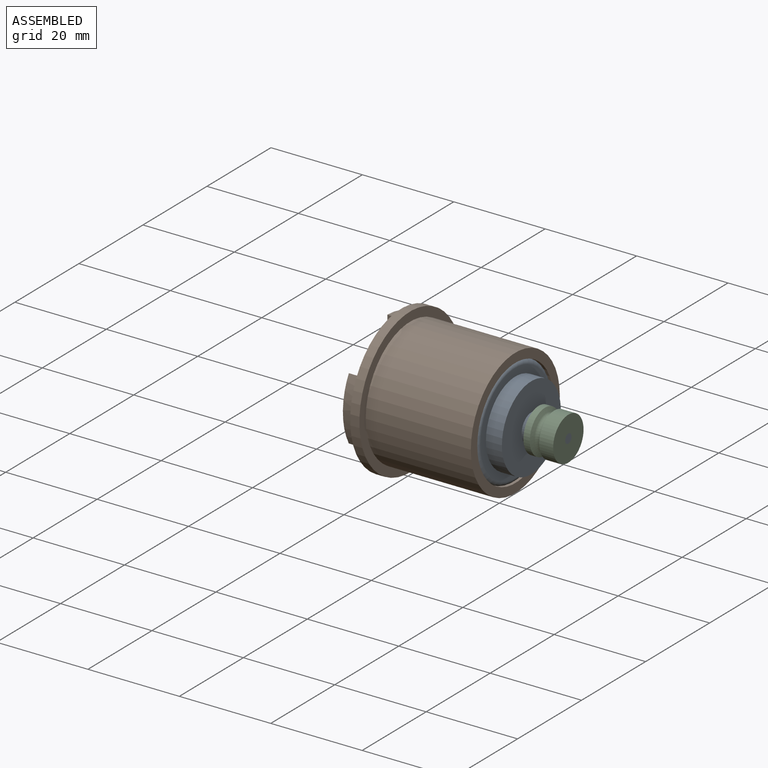
[diagram: assembled view]
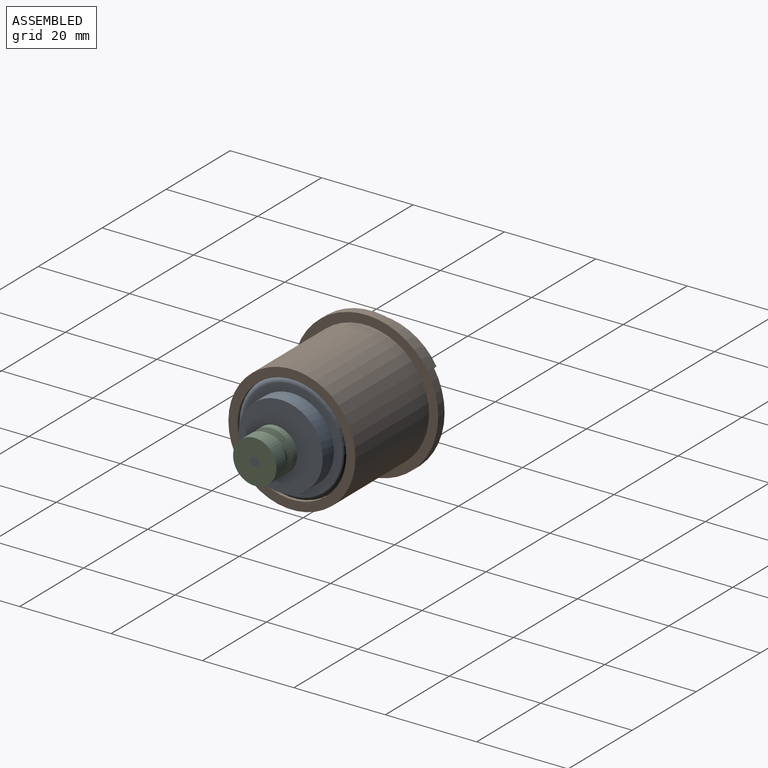
[diagram: assembled view, second angle]
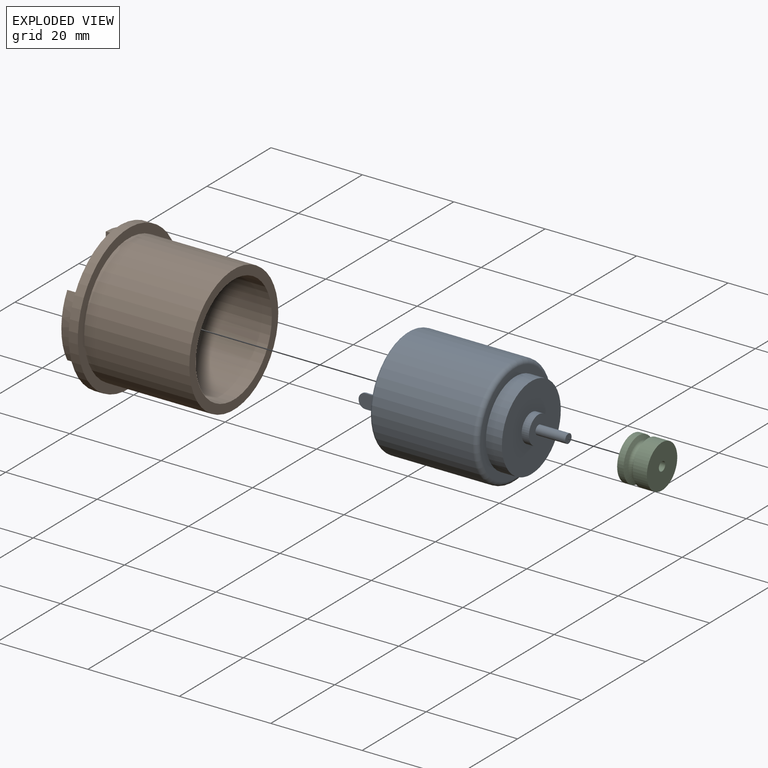
[diagram: exploded view]
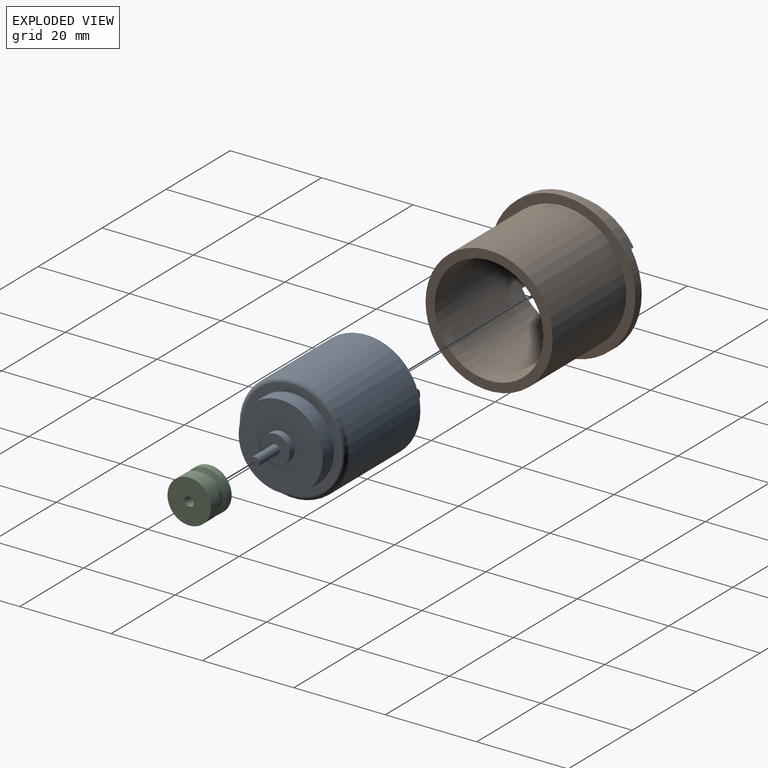
[diagram: exploded view, second angle]
ASSEMBLY  parts=3 mates=2
PART A: 29 faces, bbox 40.4x25.8x25.8 mm
  f0: plane 22.8x22.8mm, normal (-1,0,0), area 349.3mm2, adj f5,f9,f10,f11,f12,f13,f15,f16
  f1: plane 8.5x8.5mm, normal (-1,0,0), area 53.6mm2, adj f5,f6
  f2: cylinder r=11.9mm len=23.8mm, axis (-1,0,0), area 1644.9mm2, adj f8,f9
  f3: plane 21.8x21.8mm, normal (1,0,0), area 107.3mm2, adj f4,f8
  f4: cylinder r=9.2mm len=18.4mm, axis (-1,0,0), area 202.3mm2, adj f3,f28
  f5: cylinder r=4.25mm len=8.5mm, axis (1,0,0), area 53.4mm2, adj f0,f1
  f6: cylinder r=1mm len=2mm, axis (1,0,0), area 7mm2, adj f1,f7
  f7: plane 2x2mm, normal (-1,0,0), area 3.1mm2, adj f6
  f8: torus R=10.9mm, axis (-1,0,0), area 113.9mm2, adj f2,f3
  f9: torus R=11.4mm, axis (1,0,0), area 57.8mm2, adj f0,f2
  f10: plane 5.26x3.15mm, normal (0,1,0), area 15.6mm2, adj f0,f11,f13,f14,f22,f23
  f11: plane 3.76x0.35mm, normal (0,0,-1), area 1.3mm2, adj f0,f10,f12,f22
  f12: plane 5.26x3.15mm, normal (0,-1,0), area 15.6mm2, adj f0,f11,f13,f14,f22,f23
  f13: plane 3.76x0.35mm, normal (0,0,1), area 1.3mm2, adj f0,f10,f12,f23
  f14: plane 0.35x0.15mm, normal (-1,0,0), area 0.1mm2, adj f10,f12,f22,f23
  f15: plane 5.26x3.15mm, normal (0,1,0), area 15.6mm2, adj f0,f16,f18,f19,f20,f21
  f16: plane 3.76x0.35mm, normal (0,0,-1), area 1.3mm2, adj f0,f15,f17,f20
  f17: plane 5.26x3.15mm, normal (0,-1,0), area 15.6mm2, adj f0,f16,f18,f19,f20,f21
  f18: plane 3.76x0.35mm, normal (0,0,1), area 1.3mm2, adj f0,f15,f17,f21
  f19: plane 0.35x0.15mm, normal (-1,0,0), area 0.1mm2, adj f15,f17,f20,f21
  f20: cylinder r=1.5mm len=1.5mm, axis (0,1,0), area 0.8mm2, adj f15,f16,f17,f19
  f21: cylinder r=1.5mm len=1.5mm, axis (0,-1,0), area 0.8mm2, adj f15,f17,f18,f19
  f22: cylinder r=1.5mm len=1.5mm, axis (0,1,0), area 0.8mm2, adj f10,f11,f12,f14
  f23: cylinder r=1.5mm len=1.5mm, axis (0,-1,0), area 0.8mm2, adj f10,f12,f13,f14
  f24: plane 2x2mm, normal (1,0,0), area 3.1mm2, adj f25
  f25: cylinder r=1mm len=6.5mm, axis (-1,0,0), area 40.8mm2, adj f24,f26
  f26: plane 6.1x6.1mm, normal (1,0,0), area 26.1mm2, adj f25,f27
  f27: cylinder r=3.05mm len=6.1mm, axis (-1,0,0), area 30.7mm2, adj f26,f28
  f28: plane 18.4x18.4mm, normal (1,0,0), area 236.7mm2, adj f4,f27
PART B: 18 faces, bbox 28x31.8x31.8 mm
  f0: cylinder r=13.9mm len=12.04mm, axis (1,0,0), area 43.7mm2, adj f3,f4,f10,f17
  f1: cylinder r=11.9mm len=28mm, axis (1,0,0), area 1981.4mm2, adj f2,f3,f4,f5,f6,f7,f10,f14
  f2: plane 3x1.73mm, normal (0,0.5,0.87), area 6mm2, adj f1,f9,f10,f15
  f3: plane 3x1.73mm, normal (0,0.5,-0.87), area 6mm2, adj f0,f1,f10,f17
  f4: plane 3x2mm, normal (0,-1,0), area 6mm2, adj f0,f1,f10,f17
  f5: plane 3x1.73mm, normal (0,0.5,0.87), area 6mm2, adj f1,f8,f10,f16
  f6: plane 3x1.73mm, normal (0,0.5,-0.87), area 6mm2, adj f1,f8,f10,f16
  f7: plane 3x2mm, normal (0,-1,0), area 6mm2, adj f1,f9,f10,f15
  f8: cylinder r=13.9mm len=13.9mm, axis (1,0,0), area 43.7mm2, adj f5,f6,f10,f16
  f9: cylinder r=13.9mm len=12.04mm, axis (1,0,0), area 43.7mm2, adj f2,f7,f10,f15
  f10: plane 31.8x31.8mm, normal (-1,0,0), area 268.3mm2, adj f0,f1,f2,f3,f4,f5,f6,f7
  f11: cylinder r=15.9mm len=31.8mm, axis (1,0,0), area 199.8mm2, adj f10,f12
  f12: plane 31.8x31.8mm, normal (1,0,0), area 187.2mm2, adj f11,f13
  f13: cylinder r=13.9mm len=27.8mm, axis (1,0,0), area 2008.7mm2, adj f12,f14
  f14: plane 27.8x27.8mm, normal (1,0,0), area 162.1mm2, adj f1,f13
  f15: plane 12.05x7.95mm, normal (-1,0,0), area 27mm2, adj f1,f2,f7,f9
  f16: plane 13.91x3.6mm, normal (-1,0,0), area 27mm2, adj f1,f5,f6,f8
  f17: plane 12.04x7.95mm, normal (-1,0,0), area 27mm2, adj f0,f1,f3,f4
PART C: 8 faces, bbox 9.5x6.5x9.5 mm
  f0: torus R=4mm, axis (0,-1,0), area 41mm2, adj f1,f6
  f1: cone r=3.77mm half-angle=72.5deg, axis (0,1,0), area 27.4mm2, adj f0,f2
  f2: cylinder r=4.75mm len=9.5mm, axis (0,-1,0), area 41.1mm2, adj f1,f3
  f3: plane 9.5x9.5mm, normal (0,1,0), area 67.7mm2, adj f2,f7
  f4: plane 9.5x9.5mm, normal (0,-1,0), area 67.7mm2, adj f5,f7
  f5: cylinder r=4.75mm len=9.5mm, axis (0,-1,0), area 91.8mm2, adj f4,f6
  f6: cone r=3.77mm half-angle=72.5deg, axis (0,-1,0), area 27.4mm2, adj f0,f5
  f7: cylinder r=1mm len=6.5mm, axis (0,1,0), area 40.8mm2, adj f3,f4
PLACE A at identity
PLACE B at identity fixed
PLACE C rot(axis=(-0.58,0.58,0.58),120deg) t=(31,0,0)mm
MATE fastened C.f7 <-> A.f2  axis (1,0,0) through (35.1,0,0)mm
MATE fastened A.f2 <-> B.f0  axis (1,0,0) through (23.5,0,0)mm
